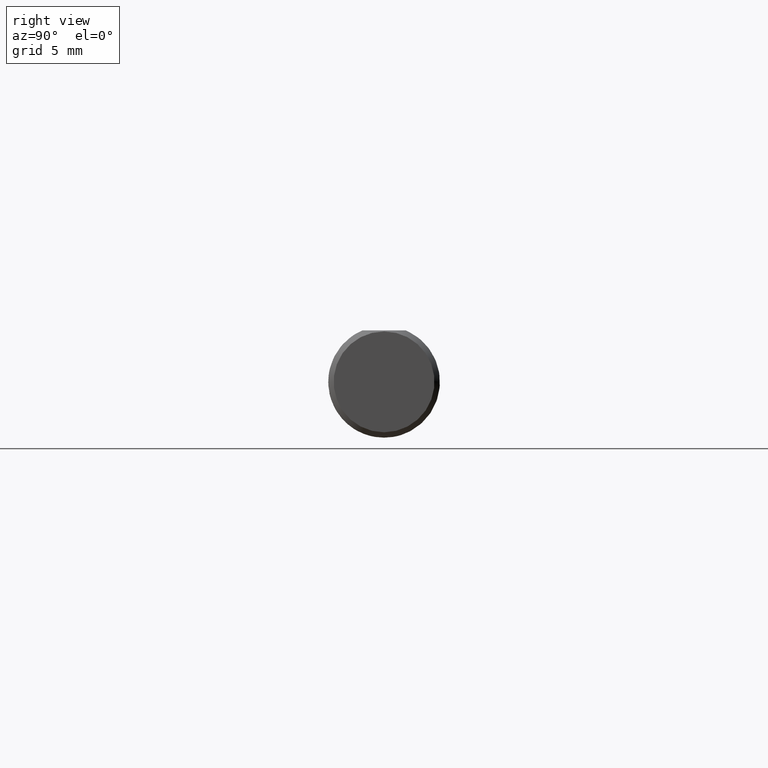
[diagram: clean part render]
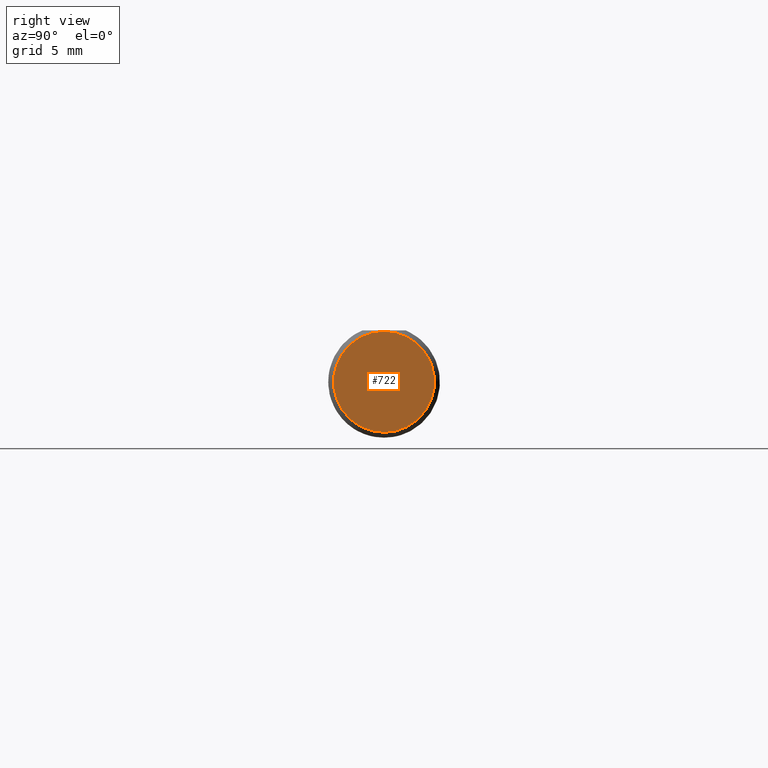
[diagram: same view with one face highlighted and labeled with its STEP entity id]
A machine part, right view. The second image highlights one B-rep face of the part: STEP entity #722.
In plain terms, the highlighted planar face has unit normal (-1, -0, 0).
Its self-contained STEP definition (entity closure, byte-faithful):
#22 = PLANE ( 'NONE',  #614 ) ;
#42 = EDGE_LOOP ( 'NONE', ( #155, #78 ) ) ;
#70 = CIRCLE ( 'NONE', #130, 0.1410999999999999754 ) ;
#78 = ORIENTED_EDGE ( 'NONE', *, *, #464, .T. ) ;
#123 = CARTESIAN_POINT ( 'NONE',  ( -4.695363739110452099E-17, 1.819825143532968321E-17, -0.1410999999999999754 ) ) ;
#130 = AXIS2_PLACEMENT_3D ( 'NONE', #141, #659, #271 ) ;
#141 = CARTESIAN_POINT ( 'NONE',  ( -4.695363739110451482E-17, -2.459287858768259838E-17, 0.000000000000000000 ) ) ;
#155 = ORIENTED_EDGE ( 'NONE', *, *, #306, .T. ) ;
#204 = VERTEX_POINT ( 'NONE', #479 ) ;
#271 = DIRECTION ( 'NONE',  ( 1.742939658942782065E-16, -1.000000000000000000, 0.000000000000000000 ) ) ;
#304 = DIRECTION ( 'NONE',  ( 1.742939658942782065E-16, -1.000000000000000000, 0.000000000000000000 ) ) ;
#306 = EDGE_CURVE ( 'NONE', #204, #618, #70, .T. ) ;
#359 = FACE_OUTER_BOUND ( 'NONE', #42, .T. ) ;
#464 = EDGE_CURVE ( 'NONE', #618, #204, #658, .T. ) ;
#479 = CARTESIAN_POINT ( 'NONE',  ( -4.695363739110452099E-17, 1.895600338963814870E-32, 0.1410999999999999754 ) ) ;
#487 = DIRECTION ( 'NONE',  ( -1.000000000000000000, -1.742939658942782065E-16, 0.000000000000000000 ) ) ;
#509 = DIRECTION ( 'NONE',  ( 1.000000000000000000, 1.742939658942782065E-16, 0.000000000000000000 ) ) ;
#614 = AXIS2_PLACEMENT_3D ( 'NONE', #645, #487, #304 ) ;
#618 = VERTEX_POINT ( 'NONE', #123 ) ;
#620 = DIRECTION ( 'NONE',  ( 1.742939658942782065E-16, -1.000000000000000000, 0.000000000000000000 ) ) ;
#645 = CARTESIAN_POINT ( 'NONE',  ( -9.678837909573454915E-17, 0.2776584335525523750, -0.1560999999999999888 ) ) ;
#658 = CIRCLE ( 'NONE', #700, 0.1410999999999999754 ) ;
#659 = DIRECTION ( 'NONE',  ( 1.000000000000000000, 1.742939658942782065E-16, 0.000000000000000000 ) ) ;
#680 = CARTESIAN_POINT ( 'NONE',  ( -4.695363739110451482E-17, -2.459287858768259838E-17, 0.000000000000000000 ) ) ;
#700 = AXIS2_PLACEMENT_3D ( 'NONE', #680, #509, #620 ) ;
#722 = ADVANCED_FACE ( 'NONE', ( #359 ), #22, .F. ) ;